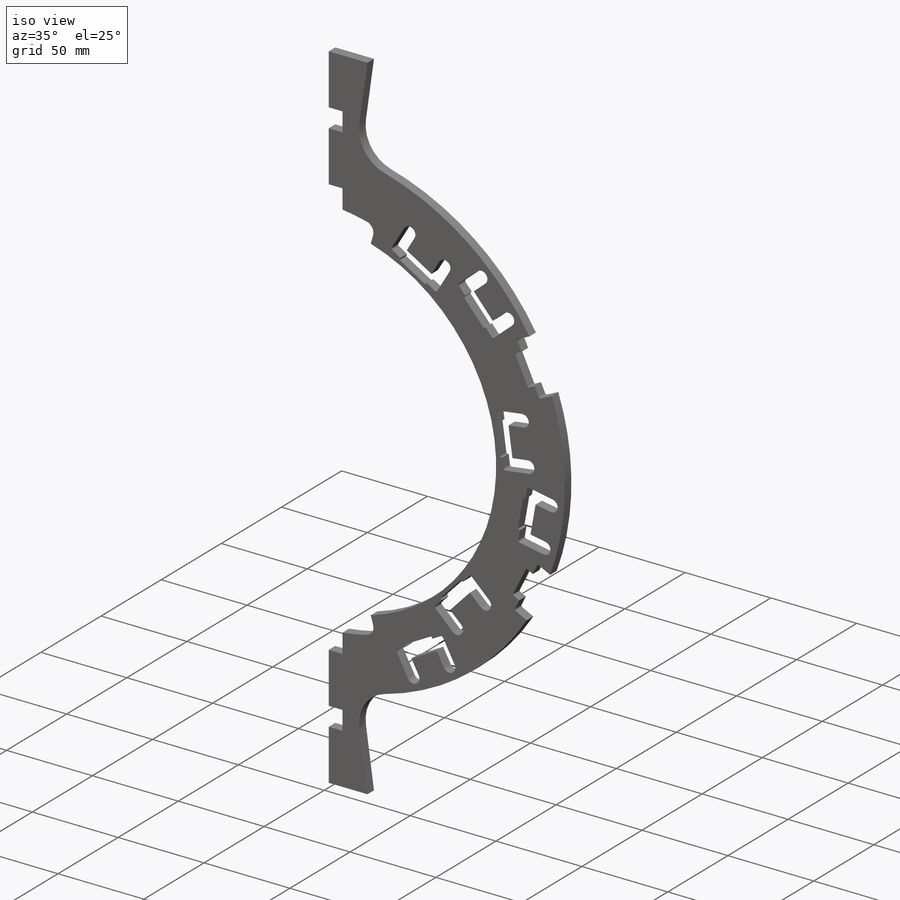
[diagram: iso view]
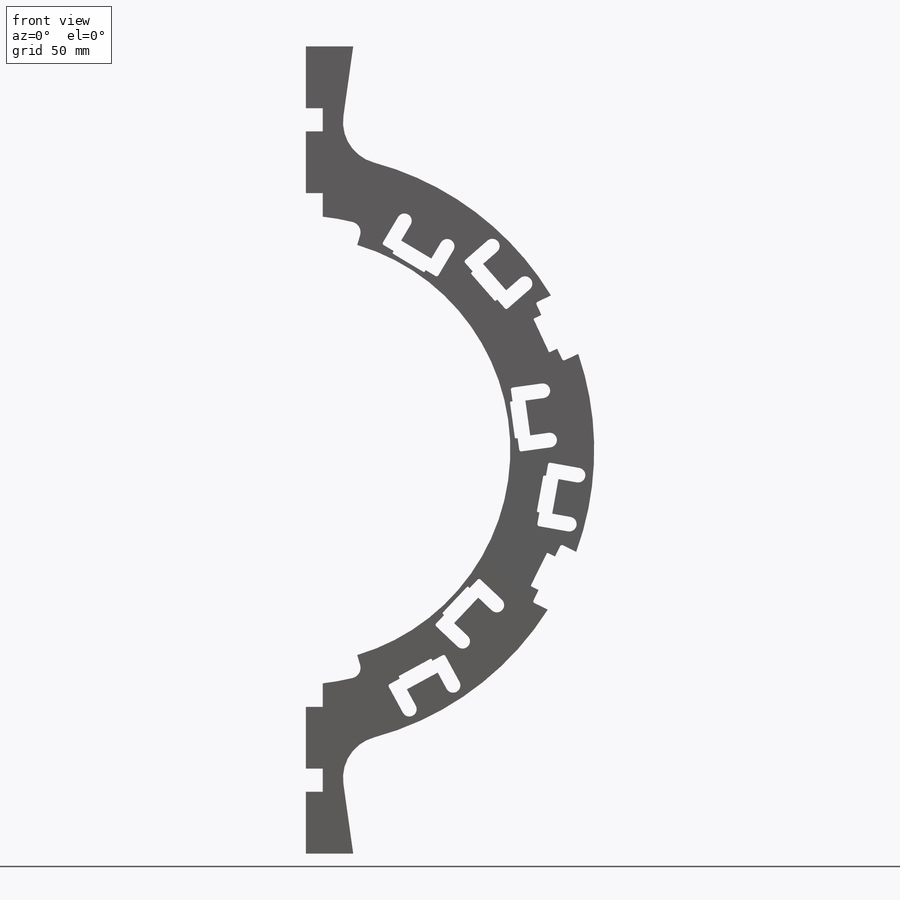
[diagram: front view]
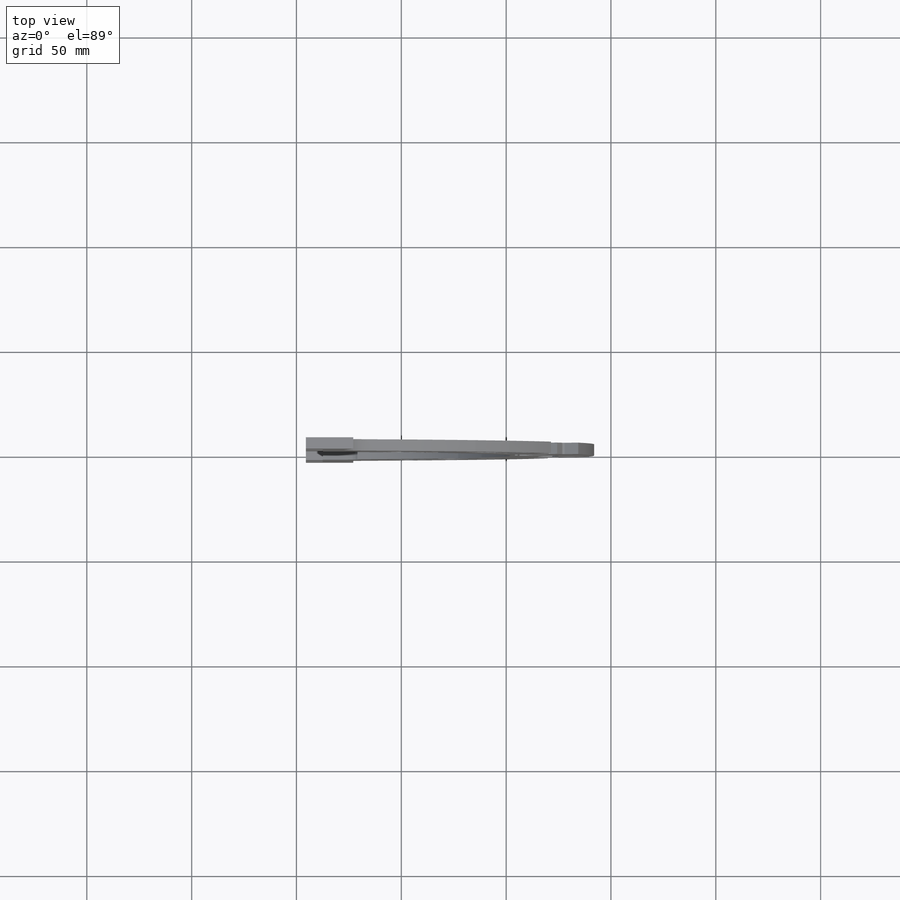
[diagram: top view]
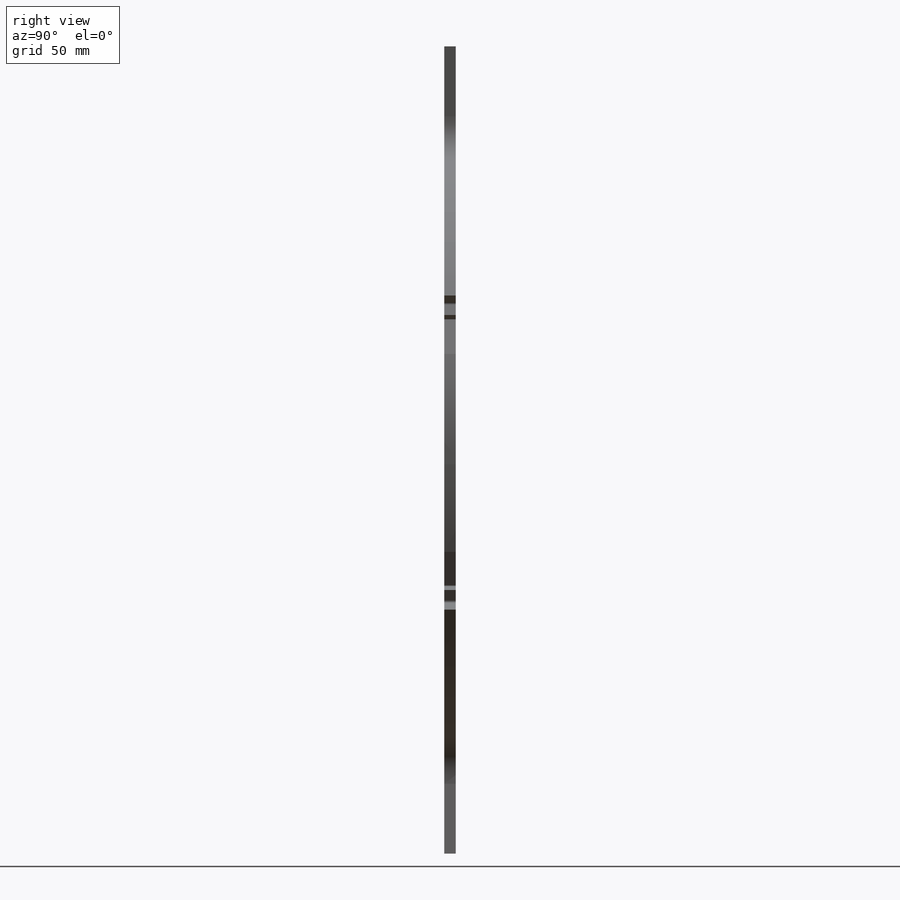
[diagram: right view]
SOLIDWORKS PART (.sldprt)
format: sldprt  version: not decoded by parser v0  size: 2,240,512 bytes
history: native  units: mm
features: sketch x14, cut_extrude x8, pattern_circular x6, plane x3, fillet x3, extrude x2, mirror x2, cut_revolve x2, material x1, hole x1 + 2 further entries (+13 scaffold rows collapsed)
feature tree (57):
  scaffold x13  (default folders/planes/origin — collapsed)
  material  "Material <not specified>"
  plane  "Plane1"
  plane  "Plane2"
  plane  "Plane3"
  "Axis2"
  "Axis3"
  sketch  "Sketch1"  dims[c1.D2=142.0mm c1.D4=20.0mm c1.D1=112.0mm c1.D9=135.0mm c1.D10=20.0mm c2.D1=~37.196176mm c3.D1=60.0deg c3.D3=~24.375851mm c4.D3=60.0deg c4.D5=12.0mm c4.D6=416.0mm c4.D7=~104.61094mm c4.D8=~102.879192mm c4.D1=~97.413211mm c5.D1=60.0deg c5.D5=~56.199904mm c6.D5=8.0deg c6.D3=~43.780116mm c7.D3=60.0deg c7.D7=~67.933915mm c8.D7=8.0deg c8.D8=105.0mm c8.D9=~110.925113mm c9.D9=~68.856724deg c10.D9=~42.845414mm c11.D9=~68.856724deg c11.D8=110.0mm c12.D9=~140.525114mm c13.D9=~69.874197deg c13.D3=4.5mm c13.D8=~29.232494mm c14.D8=8.0deg]
  extrude  "Extrude1"  Depth=5.43mm
  hole  "#4-40 Tapped Hole2"  Diameter=2.8448mm Depth=6mm
  sketch  "Sketch31"  dims[D1=117.0mm D2=157.5mm D3=198.0mm]
  sketch  "Sketch32"  dims[hole-wizard template sketch: 46 standard entries collapsed; hole parameters kept: c15.Tap Drill Dia.=2.8448mm c15.Tap Drill Depth=6.0mm c15.D3=~14.816244mm c15.Drill Angle=118.0deg]
  mirror  "Mirror1"
  sketch  "Sketch33"  dims[c1.D1=6.985mm c2.D1=~93.233169deg c3.D1=~220.170636mm c4.D1=3.0deg c4.D2=2.8448mm c4.D3=~220.170636mm c5.D3=60.0deg c5.D4=6.0mm c5.D1=6.985mm c6.D1=3.0deg]
  sketch  "Sketch34"  dims[c1.D1=6.985mm c2.D1=~93.233169deg c3.D1=~220.170636mm c4.D1=3.0deg c4.D2=2.5mm c4.D3=~220.170636mm c5.D3=60.0deg c5.D4=6.0mm c5.D1=~222.186754mm c6.D1=3.0deg c7.D1=6.985mm c8.D1=6.0deg]
  cut_revolve  "Cut-Revolve1"  Angle=360deg
  cut_revolve  "Cut-Revolve2"  Angle=360deg
  mirror  "Mirror2"
  sketch  "Sketch35"  dims[D2=5.5mm D3=11.0mm D4=5.5mm D5=8.0mm D1=0.0mm]
  cut_extrude  "Cut-Extrude1"  [1 undecoded]
  sketch  "Sketch36"  dims[c1.D3=102.0mm c1.D1=~5.23875mm c2.D1=~31.748965deg c2.D2=~29.276035mm c2.D3=99.2mm c2.D4=40.0mm c3.D1=~57.706152mm c3.D2=~12.859324mm c4.D2=~14.416843deg c4.D1=~5.23875mm c5.D1=16.5deg]
  extrude  "Extrude2"  [1 undecoded]
  fillet  "Fillet1"  Radius=5mm
  sketch  "Sketch38"  dims[c1.D1=~5.23875mm c2.D1=~31.748965deg c2.D2=~120.92089mm c3.D2=~17.711442deg c3.D3=~107.581999mm c3.D4=~119.67089mm c3.D5=2.5mm c3.D6=2.5mm c3.D7=35.0mm c3.D8=35.0mm c3.D9=7.0mm c3.D10=10.0mm c4.D3=~110.957975mm c4.D4=~123.046866mm c4.D5=12.0mm c4.D6=15.0mm c5.D3=23.75mm c5.D7=~120.586405mm c5.D4=133.022mm c5.D1=~121.11928mm c6.D1=~30.851123deg c6.D2=~140.618303mm c7.D2=~48.894184deg c7.D5=2.425mm c7.D8=2.425mm c7.D4=~107.678405mm c7.D7=~121.731939mm]
  cut_extrude  "Mouse Hole Cut-Extrude2"  [1 undecoded]
  fillet  "Fillet3"  Radius=1mm
  sketch  "Sketch40"  dims[c1.D1=0.5mm c1.D7=0.5mm c1.D2=23.0mm c1.D3=~5.23875mm c2.D3=~31.748965deg c2.D4=~101.718168mm c2.D5=17.75mm c2.D6=7.4mm c2.D8=~113.807059mm c2.D9=23.0mm c2.D2=~121.731939mm c3.D4=~107.678405mm c3.D3=~86.719326mm c4.D3=~30.851123deg]
  cut_extrude  "Ladder Mount Hole Extrude4"  [1 undecoded]
  pattern_circular  "Ladder Mount Hole CirPattern1"  Count=3 Angle=51.263149deg
  sketch  "Sketch39"  dims[c1.D4=1.25mm c1.D1=~5.23875mm c2.D1=~64.950828deg c2.D2=~131.673325mm c2.D3=2.5mm c2.D4=17.5mm c2.D5=10.0mm c2.D6=~130.466601mm c3.D2=7.0mm c3.D3=23.75mm c3.D4=2.425mm c3.D5=~135.523075mm]
  cut_extrude  "Mouse Hole Extrude3"  [1 undecoded]
  fillet  "Fillet2"  Radius=1mm
  sketch  "Sketch41"  dims[c1.D6=0.5mm c1.D1=~5.23875mm c2.D1=~64.950828deg c2.D2=~125.809494mm c2.D3=23.0mm c2.D4=14.5mm c2.D5=4.584mm c3.D2=~132.558601mm c3.D3=3.7mm c3.D4=17.75mm c3.D5=20.0mm]
  cut_extrude  "Ladder Mount Hole Extrude5"  [1 undecoded]
  pattern_circular  "Ladder Mount Hole CirPattern2"  Count=2 Angle=51.263149deg
  pattern_circular  "Mouse Hole CirPattern3"  Count=3 Angle=51.263149deg
  pattern_circular  "Mouse Hole CirPattern4"  Count=2 Angle=51.263149deg
  sketch  "SlotSke"  dims[c1.Length=60.0mm c1.D2=10.0mm c1.D3=55.0mm c1.D4=40.0mm c1.Width=3.0mm c2.Length=70.0mm c3.Length=32.0mm c3.Locating dim1=7.25mm c3.Locating dim2=2.25mm c3.D1=4.7mm]
  cut_extrude  "Slot"  [1 undecoded]
  sketch  "SlotSke1"  dims[c1.Length=60.0mm c1.D2=10.0mm c1.D3=55.0mm c1.D4=40.0mm c1.Width=3.0mm c2.Length=70.0mm c3.Length=32.0mm c3.Locating dim1=7.25mm c3.Locating dim2=2.25mm c3.D1=4.7mm]
  cut_extrude  "Slot1"  [1 undecoded]
  pattern_circular  "Cable Slot CirPattern5"  Count=3 Angle=51.263149deg
  sketch  "SlotSke2"  dims[c1.Length=60.0mm c1.D2=10.0mm c1.D3=55.0mm c1.D4=40.0mm c1.Width=3.0mm c2.Length=70.0mm c3.Length=32.0mm c3.Locating dim1=7.25mm c3.Locating dim2=2.25mm c3.D1=4.7mm]
  cut_extrude  "Slot2"  [1 undecoded]
  pattern_circular  "Cable Slot CirPattern6"  Count=2 Angle=51.263149deg
decode coverage: 27 of 38 modeling features carry decoded parameters; 2 rows unclassified (native names shown)
note: ~ marks probable driven/reference dimensions
note: 9 parameter values undecoded
summary: no parameter record found for 9 features
note: suppression state not decoded; provenance and decode notes live in map.json
